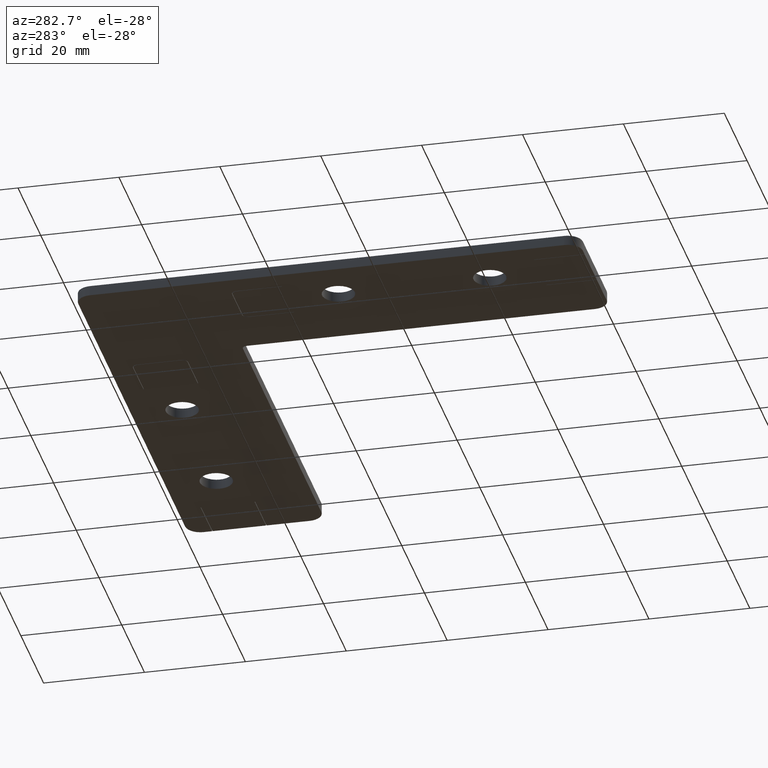
[diagram: clean part render]
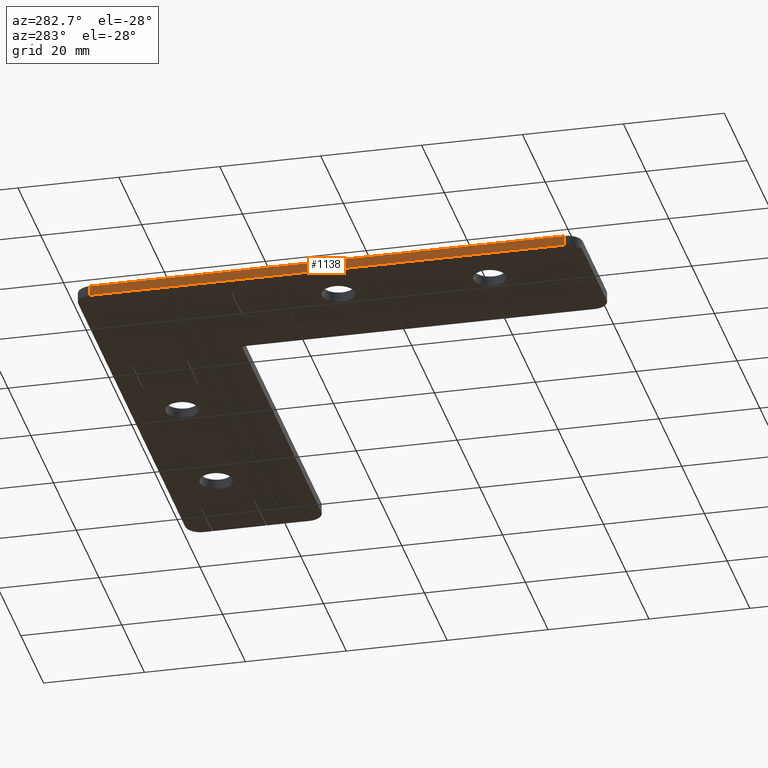
[diagram: same view with one face highlighted and labeled with its STEP entity id]
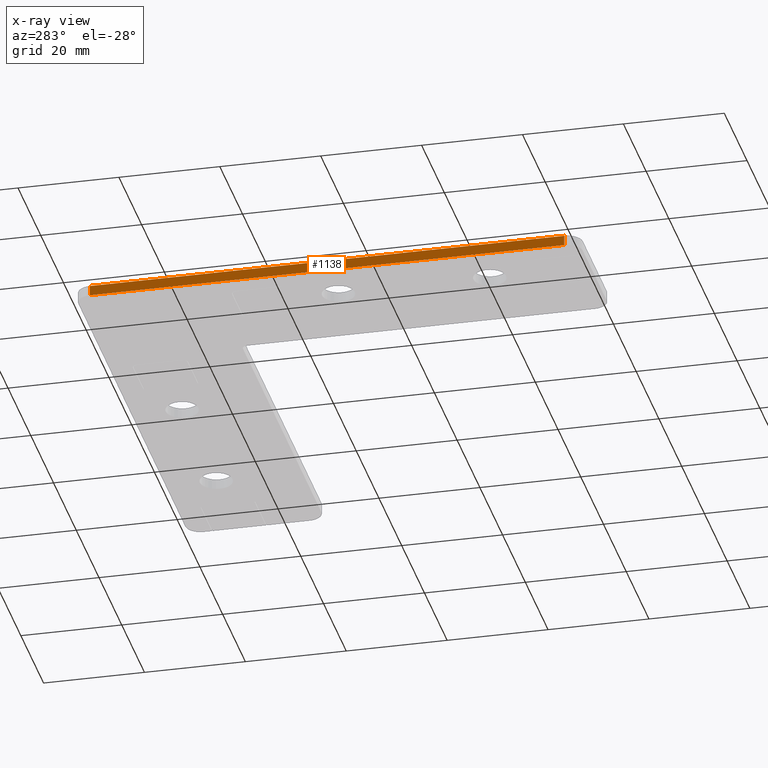
[diagram: x-ray of the same camera — body ghosted, the highlighted face saturated]
A machine part, auxiliary view. The second image highlights one B-rep face of the part: STEP entity #1138.
The next image is the same camera in x-ray: the body ghosted, the highlighted face saturated — about 0% of this face is hidden behind the body in this view.
In plain terms, the highlighted planar face has unit normal (1, 0, 0).
Its self-contained STEP definition (entity closure, byte-faithful):
#32=PLANE('',#1227);
#76=FACE_OUTER_BOUND('',#134,.T.);
#134=EDGE_LOOP('',(#811,#812,#813,#814));
#252=LINE('',#1688,#384);
#253=LINE('',#1692,#385);
#254=LINE('',#1694,#386);
#255=LINE('',#1695,#387);
#384=VECTOR('',#1359,2.);
#385=VECTOR('',#1364,93.9998597412109);
#386=VECTOR('',#1365,2.);
#387=VECTOR('',#1366,93.9998597412109);
#517=VERTEX_POINT('',#1685);
#518=VERTEX_POINT('',#1687);
#519=VERTEX_POINT('',#1691);
#520=VERTEX_POINT('',#1693);
#635=EDGE_CURVE('',#518,#517,#252,.T.);
#637=EDGE_CURVE('',#517,#519,#253,.T.);
#638=EDGE_CURVE('',#520,#519,#254,.T.);
#639=EDGE_CURVE('',#518,#520,#255,.T.);
#811=ORIENTED_EDGE('',*,*,#635,.T.);
#812=ORIENTED_EDGE('',*,*,#637,.T.);
#813=ORIENTED_EDGE('',*,*,#638,.F.);
#814=ORIENTED_EDGE('',*,*,#639,.F.);
#1138=ADVANCED_FACE('',(#76),#32,.F.);
#1227=AXIS2_PLACEMENT_3D('',#1690,#1362,#1363);
#1359=DIRECTION('',(0.,0.,-1.));
#1362=DIRECTION('center_axis',(1.,0.,0.));
#1363=DIRECTION('ref_axis',(0.,0.,-1.));
#1364=DIRECTION('',(0.,-1.,0.));
#1365=DIRECTION('',(0.,0.,-1.));
#1366=DIRECTION('',(0.,-1.,0.));
#1685=CARTESIAN_POINT('',(-9.94999999999999,96.9998597412109,-2.));
#1687=CARTESIAN_POINT('',(-9.94999999999999,96.9998597412109,0.));
#1688=CARTESIAN_POINT('',(-9.94999999999999,96.9998597412109,0.));
#1690=CARTESIAN_POINT('Origin',(-9.94999999999999,96.9998597412109,0.));
#1691=CARTESIAN_POINT('',(-9.94999999999999,3.,-2.));
#1692=CARTESIAN_POINT('',(-9.94999999999999,96.9998597412109,-2.));
#1693=CARTESIAN_POINT('',(-9.94999999999999,3.,0.));
#1694=CARTESIAN_POINT('',(-9.94999999999999,3.,0.));
#1695=CARTESIAN_POINT('',(-9.94999999999999,96.9998597412109,0.));